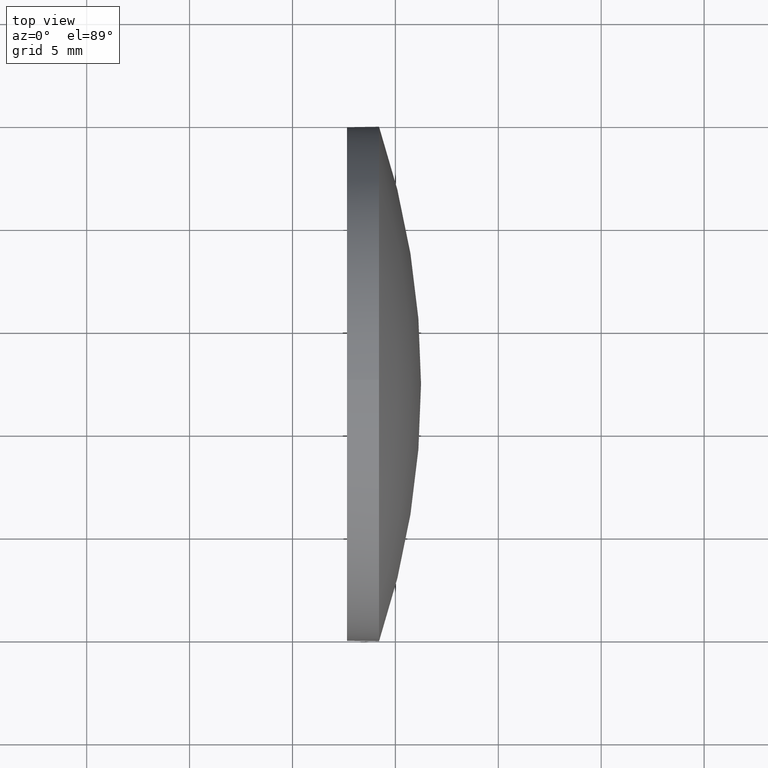
[diagram: clean part render]
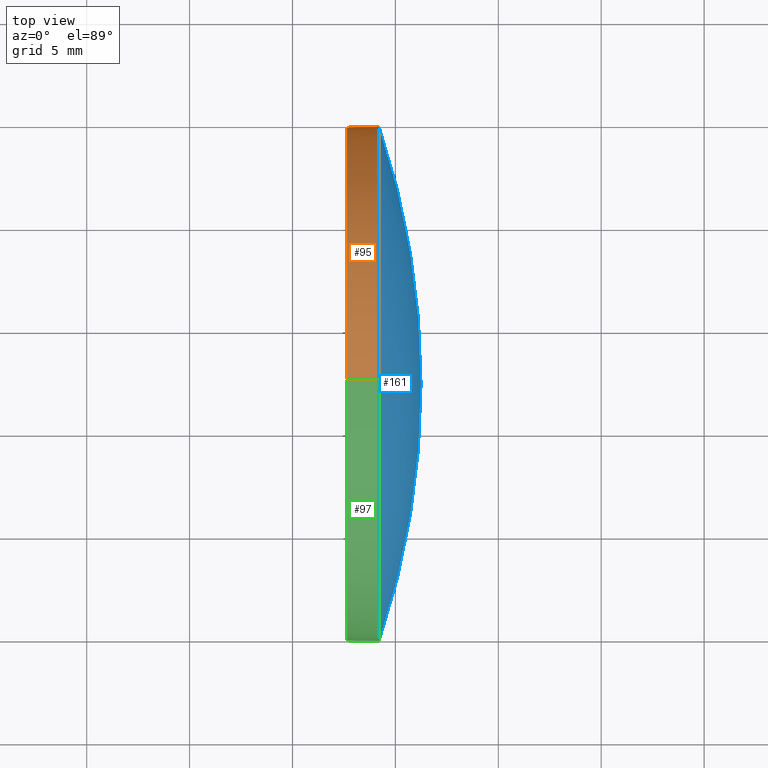
[diagram: same view with three faces highlighted in distinct colors, each labeled with its STEP entity id]
A machine part, top view with three faces highlighted in distinct colors.
Their STEP definitions:

[orange] entity #95 — the highlighted cylindrical surface (partial cylindrical patch) has radius 12.5 mm, axis along (-1, -0, -0).
#1 = CARTESIAN_POINT ( 'NONE',  ( 482.6463922224538700, 32.31075153967162800, 0.0000000000000000000 ) ) ;
#3 = DIRECTION ( 'NONE',  ( -1.000000000000000000, -0.0000000000000000000, -0.0000000000000000000 ) ) ;
#9 = DIRECTION ( 'NONE',  ( -1.000000000000000000, -0.0000000000000000000, -0.0000000000000000000 ) ) ;
#14 = CARTESIAN_POINT ( 'NONE',  ( 482.6463922224538700, 32.31075153967162800, 12.50000000000000400 ) ) ;
#25 = CARTESIAN_POINT ( 'NONE',  ( 484.2063922224538700, 32.31075153967162800, 12.50000000000000400 ) ) ;
#27 = DIRECTION ( 'NONE',  ( 0.0000000000000000000, 0.0000000000000000000, 1.000000000000000000 ) ) ;
#32 = AXIS2_PLACEMENT_3D ( 'NONE', #54, #111, #27 ) ;
#42 = AXIS2_PLACEMENT_3D ( 'NONE', #1, #172, #90 ) ;
#43 = ORIENTED_EDGE ( 'NONE', *, *, #160, .T. ) ;
#46 = ORIENTED_EDGE ( 'NONE', *, *, #109, .F. ) ;
#54 = CARTESIAN_POINT ( 'NONE',  ( 480.6172846440168800, 32.31075153967162800, 0.0000000000000000000 ) ) ;
#55 = EDGE_CURVE ( 'NONE', #117, #124, #120, .T. ) ;
#64 = AXIS2_PLACEMENT_3D ( 'NONE', #123, #100, #89 ) ;
#78 = CYLINDRICAL_SURFACE ( 'NONE', #32, 12.50000000000000400 ) ;
#81 = VERTEX_POINT ( 'NONE', #25 ) ;
#89 = DIRECTION ( 'NONE',  ( 0.0000000000000000000, 0.0000000000000000000, 1.000000000000000000 ) ) ;
#90 = DIRECTION ( 'NONE',  ( 0.0000000000000000000, 0.0000000000000000000, 1.000000000000000000 ) ) ;
#92 = VERTEX_POINT ( 'NONE', #14 ) ;
#95 = ADVANCED_FACE ( 'NONE', ( #146 ), #78, .T. ) ;
#100 = DIRECTION ( 'NONE',  ( -1.000000000000000000, -0.0000000000000000000, -0.0000000000000000000 ) ) ;
#103 = CIRCLE ( 'NONE', #147, 12.50000000000000400 ) ;
#105 = VECTOR ( 'NONE', #3, 1000.000000000000000 ) ;
#107 = CARTESIAN_POINT ( 'NONE',  ( 484.2063922224538700, 32.31075153967162800, 0.0000000000000000000 ) ) ;
#109 = EDGE_CURVE ( 'NONE', #92, #171, #144, .T. ) ;
#111 = DIRECTION ( 'NONE',  ( -1.000000000000000000, -0.0000000000000000000, -0.0000000000000000000 ) ) ;
#117 = VERTEX_POINT ( 'NONE', #135 ) ;
#118 = ORIENTED_EDGE ( 'NONE', *, *, #55, .T. ) ;
#120 = CIRCLE ( 'NONE', #64, 12.50000000000000400 ) ;
#123 = CARTESIAN_POINT ( 'NONE',  ( 484.2063922224538700, 32.31075153967162800, 0.0000000000000000000 ) ) ;
#124 = VERTEX_POINT ( 'NONE', #153 ) ;
#126 = CARTESIAN_POINT ( 'NONE',  ( 482.6463922224538700, 32.31075153967162800, -12.50000000000000400 ) ) ;
#128 = VECTOR ( 'NONE', #136, 1000.000000000000000 ) ;
#130 = EDGE_CURVE ( 'NONE', #81, #92, #166, .T. ) ;
#134 = LINE ( 'NONE', #167, #105 ) ;
#135 = CARTESIAN_POINT ( 'NONE',  ( 484.2063922224538700, 44.81075153967162100, 0.0000000000000000000 ) ) ;
#136 = DIRECTION ( 'NONE',  ( -1.000000000000000000, -0.0000000000000000000, -0.0000000000000000000 ) ) ;
#144 = CIRCLE ( 'NONE', #42, 12.50000000000000400 ) ;
#146 = FACE_OUTER_BOUND ( 'NONE', #157, .T. ) ;
#147 = AXIS2_PLACEMENT_3D ( 'NONE', #107, #9, #181 ) ;
#153 = CARTESIAN_POINT ( 'NONE',  ( 484.2063922224538700, 32.31075153967162800, -12.50000000000000400 ) ) ;
#154 = CARTESIAN_POINT ( 'NONE',  ( 480.6172846440168800, 32.31075153967162800, 12.50000000000000400 ) ) ;
#157 = EDGE_LOOP ( 'NONE', ( #118, #43, #46, #162, #175 ) ) ;
#160 = EDGE_CURVE ( 'NONE', #124, #171, #134, .T. ) ;
#162 = ORIENTED_EDGE ( 'NONE', *, *, #130, .F. ) ;
#166 = LINE ( 'NONE', #154, #128 ) ;
#167 = CARTESIAN_POINT ( 'NONE',  ( 480.6172846440168800, 32.31075153967162800, -12.50000000000000400 ) ) ;
#171 = VERTEX_POINT ( 'NONE', #126 ) ;
#172 = DIRECTION ( 'NONE',  ( -1.000000000000000000, -0.0000000000000000000, -0.0000000000000000000 ) ) ;
#175 = ORIENTED_EDGE ( 'NONE', *, *, #176, .T. ) ;
#176 = EDGE_CURVE ( 'NONE', #81, #117, #103, .T. ) ;
#181 = DIRECTION ( 'NONE',  ( 0.0000000000000000000, 0.0000000000000000000, 1.000000000000000000 ) ) ;

[blue] entity #161 — the highlighted spherical surface has radius 39.3166 mm.
#9 = DIRECTION ( 'NONE',  ( -1.000000000000000000, -0.0000000000000000000, -0.0000000000000000000 ) ) ;
#15 = CARTESIAN_POINT ( 'NONE',  ( 446.9298235950028600, 32.31075153967160700, 0.0000000000000000000 ) ) ;
#17 = VERTEX_POINT ( 'NONE', #152 ) ;
#18 = AXIS2_PLACEMENT_3D ( 'NONE', #15, #164, #67 ) ;
#20 = CIRCLE ( 'NONE', #116, 12.50000000000000400 ) ;
#25 = CARTESIAN_POINT ( 'NONE',  ( 484.2063922224538700, 32.31075153967162800, 12.50000000000000400 ) ) ;
#29 = DIRECTION ( 'NONE',  ( -1.000000000000000000, -0.0000000000000000000, -0.0000000000000000000 ) ) ;
#30 = CARTESIAN_POINT ( 'NONE',  ( 446.9298235950028600, 32.31075153967160700, 0.0000000000000000000 ) ) ;
#31 = DIRECTION ( 'NONE',  ( 0.0000000000000000000, 0.0000000000000000000, 1.000000000000000000 ) ) ;
#41 = ORIENTED_EDGE ( 'NONE', *, *, #176, .F. ) ;
#47 = AXIS2_PLACEMENT_3D ( 'NONE', #30, #102, #114 ) ;
#51 = VERTEX_POINT ( 'NONE', #133 ) ;
#60 = SPHERICAL_SURFACE ( 'NONE', #47, 39.31656862745099100 ) ;
#63 = CIRCLE ( 'NONE', #150, 39.31656862745097700 ) ;
#65 = ORIENTED_EDGE ( 'NONE', *, *, #119, .F. ) ;
#67 = DIRECTION ( 'NONE',  ( 0.0000000000000000000, 1.000000000000000000, 1.224646799147353500E-016 ) ) ;
#68 = FACE_OUTER_BOUND ( 'NONE', #137, .T. ) ;
#81 = VERTEX_POINT ( 'NONE', #25 ) ;
#82 = DIRECTION ( 'NONE',  ( 1.000000000000000000, 0.0000000000000000000, 0.0000000000000000000 ) ) ;
#85 = EDGE_CURVE ( 'NONE', #17, #51, #151, .T. ) ;
#102 = DIRECTION ( 'NONE',  ( -0.0000000000000000000, 0.0000000000000000000, -1.000000000000000000 ) ) ;
#103 = CIRCLE ( 'NONE', #147, 12.50000000000000400 ) ;
#107 = CARTESIAN_POINT ( 'NONE',  ( 484.2063922224538700, 32.31075153967162800, 0.0000000000000000000 ) ) ;
#113 = CARTESIAN_POINT ( 'NONE',  ( 446.9298235950028600, 32.31075153967160700, 0.0000000000000000000 ) ) ;
#114 = DIRECTION ( 'NONE',  ( 0.0000000000000000000, 1.000000000000000000, 0.0000000000000000000 ) ) ;
#116 = AXIS2_PLACEMENT_3D ( 'NONE', #170, #29, #31 ) ;
#117 = VERTEX_POINT ( 'NONE', #135 ) ;
#119 = EDGE_CURVE ( 'NONE', #51, #81, #20, .T. ) ;
#127 = DIRECTION ( 'NONE',  ( -0.0000000000000000000, 0.0000000000000000000, 1.000000000000000000 ) ) ;
#129 = ORIENTED_EDGE ( 'NONE', *, *, #165, .T. ) ;
#133 = CARTESIAN_POINT ( 'NONE',  ( 484.2063922224538700, 19.81075153967161000, -1.530808498934190300E-015 ) ) ;
#135 = CARTESIAN_POINT ( 'NONE',  ( 484.2063922224538700, 44.81075153967162100, 0.0000000000000000000 ) ) ;
#137 = EDGE_LOOP ( 'NONE', ( #149, #129, #41, #65 ) ) ;
#147 = AXIS2_PLACEMENT_3D ( 'NONE', #107, #9, #181 ) ;
#149 = ORIENTED_EDGE ( 'NONE', *, *, #85, .F. ) ;
#150 = AXIS2_PLACEMENT_3D ( 'NONE', #113, #127, #82 ) ;
#151 = CIRCLE ( 'NONE', #18, 39.31656862745098400 ) ;
#152 = CARTESIAN_POINT ( 'NONE',  ( 486.2463922224538400, 32.31075153967160700, 0.0000000000000000000 ) ) ;
#161 = ADVANCED_FACE ( 'NONE', ( #68 ), #60, .T. ) ;
#164 = DIRECTION ( 'NONE',  ( 0.0000000000000000000, 1.224646799147353200E-016, -1.000000000000000000 ) ) ;
#165 = EDGE_CURVE ( 'NONE', #17, #117, #63, .T. ) ;
#170 = CARTESIAN_POINT ( 'NONE',  ( 484.2063922224538700, 32.31075153967162800, 0.0000000000000000000 ) ) ;
#176 = EDGE_CURVE ( 'NONE', #81, #117, #103, .T. ) ;
#181 = DIRECTION ( 'NONE',  ( 0.0000000000000000000, 0.0000000000000000000, 1.000000000000000000 ) ) ;

[green] entity #97 — the highlighted cylindrical surface (partial cylindrical patch) has radius 12.5 mm, axis along (-1, -0, -0).
#3 = DIRECTION ( 'NONE',  ( -1.000000000000000000, -0.0000000000000000000, -0.0000000000000000000 ) ) ;
#7 = CIRCLE ( 'NONE', #77, 12.50000000000000400 ) ;
#10 = ORIENTED_EDGE ( 'NONE', *, *, #130, .T. ) ;
#13 = CARTESIAN_POINT ( 'NONE',  ( 480.6172846440168800, 32.31075153967162800, 0.0000000000000000000 ) ) ;
#14 = CARTESIAN_POINT ( 'NONE',  ( 482.6463922224538700, 32.31075153967162800, 12.50000000000000400 ) ) ;
#19 = EDGE_LOOP ( 'NONE', ( #37, #53, #84, #10, #48 ) ) ;
#20 = CIRCLE ( 'NONE', #116, 12.50000000000000400 ) ;
#25 = CARTESIAN_POINT ( 'NONE',  ( 484.2063922224538700, 32.31075153967162800, 12.50000000000000400 ) ) ;
#28 = DIRECTION ( 'NONE',  ( 0.0000000000000000000, 0.0000000000000000000, 1.000000000000000000 ) ) ;
#29 = DIRECTION ( 'NONE',  ( -1.000000000000000000, -0.0000000000000000000, -0.0000000000000000000 ) ) ;
#31 = DIRECTION ( 'NONE',  ( 0.0000000000000000000, 0.0000000000000000000, 1.000000000000000000 ) ) ;
#33 = FACE_OUTER_BOUND ( 'NONE', #19, .T. ) ;
#37 = ORIENTED_EDGE ( 'NONE', *, *, #160, .F. ) ;
#38 = CYLINDRICAL_SURFACE ( 'NONE', #50, 12.50000000000000400 ) ;
#48 = ORIENTED_EDGE ( 'NONE', *, *, #86, .F. ) ;
#50 = AXIS2_PLACEMENT_3D ( 'NONE', #13, #56, #28 ) ;
#51 = VERTEX_POINT ( 'NONE', #133 ) ;
#53 = ORIENTED_EDGE ( 'NONE', *, *, #139, .T. ) ;
#56 = DIRECTION ( 'NONE',  ( -1.000000000000000000, -0.0000000000000000000, -0.0000000000000000000 ) ) ;
#59 = CARTESIAN_POINT ( 'NONE',  ( 484.2063922224538700, 32.31075153967162800, 0.0000000000000000000 ) ) ;
#71 = DIRECTION ( 'NONE',  ( -1.000000000000000000, -0.0000000000000000000, -0.0000000000000000000 ) ) ;
#72 = CARTESIAN_POINT ( 'NONE',  ( 482.6463922224538700, 32.31075153967162800, 0.0000000000000000000 ) ) ;
#74 = DIRECTION ( 'NONE',  ( 0.0000000000000000000, 0.0000000000000000000, 1.000000000000000000 ) ) ;
#77 = AXIS2_PLACEMENT_3D ( 'NONE', #72, #71, #183 ) ;
#81 = VERTEX_POINT ( 'NONE', #25 ) ;
#84 = ORIENTED_EDGE ( 'NONE', *, *, #119, .T. ) ;
#86 = EDGE_CURVE ( 'NONE', #171, #92, #7, .T. ) ;
#92 = VERTEX_POINT ( 'NONE', #14 ) ;
#94 = AXIS2_PLACEMENT_3D ( 'NONE', #59, #101, #74 ) ;
#97 = ADVANCED_FACE ( 'NONE', ( #33 ), #38, .T. ) ;
#101 = DIRECTION ( 'NONE',  ( -1.000000000000000000, -0.0000000000000000000, -0.0000000000000000000 ) ) ;
#105 = VECTOR ( 'NONE', #3, 1000.000000000000000 ) ;
#116 = AXIS2_PLACEMENT_3D ( 'NONE', #170, #29, #31 ) ;
#119 = EDGE_CURVE ( 'NONE', #51, #81, #20, .T. ) ;
#124 = VERTEX_POINT ( 'NONE', #153 ) ;
#126 = CARTESIAN_POINT ( 'NONE',  ( 482.6463922224538700, 32.31075153967162800, -12.50000000000000400 ) ) ;
#128 = VECTOR ( 'NONE', #136, 1000.000000000000000 ) ;
#130 = EDGE_CURVE ( 'NONE', #81, #92, #166, .T. ) ;
#131 = CIRCLE ( 'NONE', #94, 12.50000000000000400 ) ;
#133 = CARTESIAN_POINT ( 'NONE',  ( 484.2063922224538700, 19.81075153967161000, -1.530808498934190300E-015 ) ) ;
#134 = LINE ( 'NONE', #167, #105 ) ;
#136 = DIRECTION ( 'NONE',  ( -1.000000000000000000, -0.0000000000000000000, -0.0000000000000000000 ) ) ;
#139 = EDGE_CURVE ( 'NONE', #124, #51, #131, .T. ) ;
#153 = CARTESIAN_POINT ( 'NONE',  ( 484.2063922224538700, 32.31075153967162800, -12.50000000000000400 ) ) ;
#154 = CARTESIAN_POINT ( 'NONE',  ( 480.6172846440168800, 32.31075153967162800, 12.50000000000000400 ) ) ;
#160 = EDGE_CURVE ( 'NONE', #124, #171, #134, .T. ) ;
#166 = LINE ( 'NONE', #154, #128 ) ;
#167 = CARTESIAN_POINT ( 'NONE',  ( 480.6172846440168800, 32.31075153967162800, -12.50000000000000400 ) ) ;
#170 = CARTESIAN_POINT ( 'NONE',  ( 484.2063922224538700, 32.31075153967162800, 0.0000000000000000000 ) ) ;
#171 = VERTEX_POINT ( 'NONE', #126 ) ;
#183 = DIRECTION ( 'NONE',  ( 0.0000000000000000000, 0.0000000000000000000, 1.000000000000000000 ) ) ;